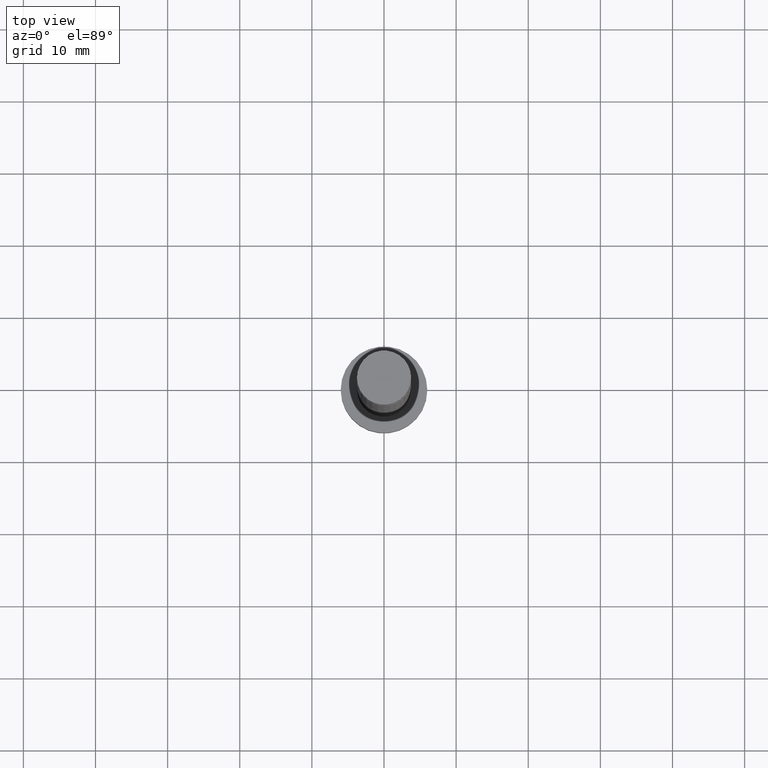
[diagram: clean part render]
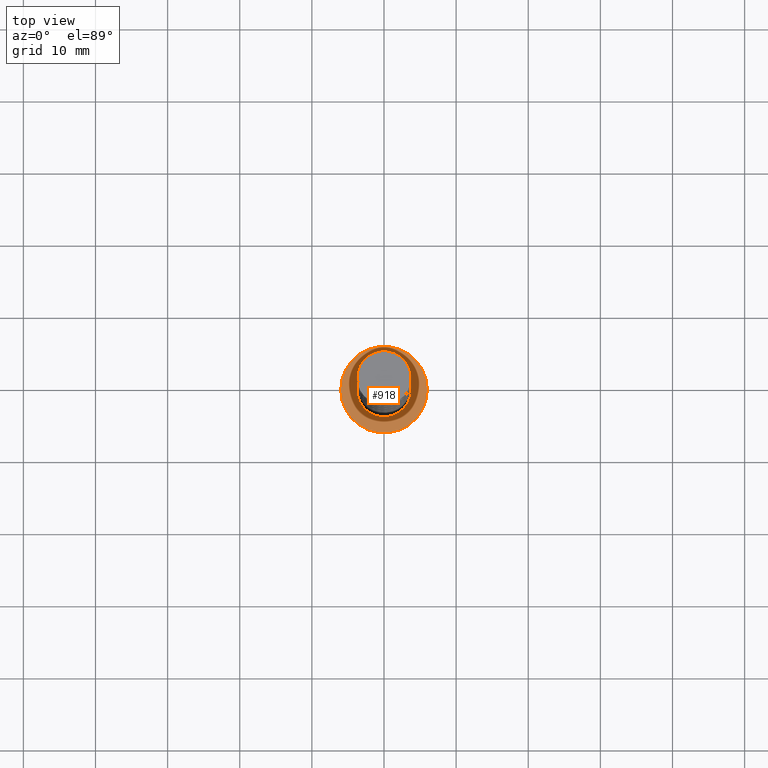
[diagram: same view with one face highlighted and labeled with its STEP entity id]
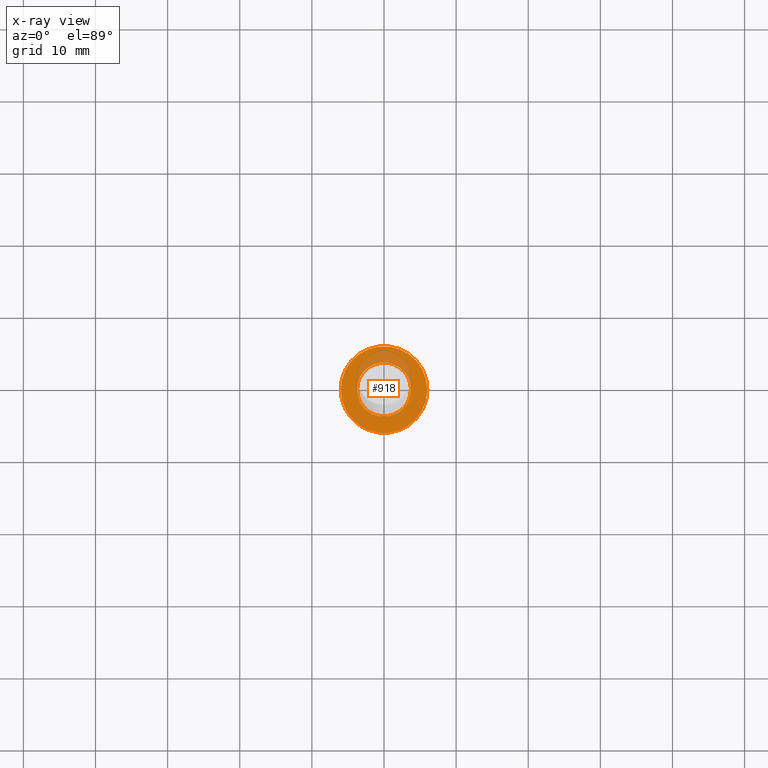
[diagram: x-ray of the same camera — body ghosted, the highlighted face saturated]
A machine part, top view. The second image highlights one B-rep face of the part: STEP entity #918.
The next image is the same camera in x-ray: the body ghosted, the highlighted face saturated — about 18% of this face is hidden behind the body in this view.
In plain terms, the highlighted planar face has unit normal (0, 0, 1).
Its self-contained STEP definition (entity closure, byte-faithful):
#8 = CARTESIAN_POINT ( 'NONE',  ( 6.000000000000000888, 7.347880794884120722E-16, 5.000000000000000000 ) ) ;
#24 = EDGE_LOOP ( 'NONE', ( #1397, #1110 ) ) ;
#36 = DIRECTION ( 'NONE',  ( 0.000000000000000000, 0.000000000000000000, 1.000000000000000000 ) ) ;
#50 = CARTESIAN_POINT ( 'NONE',  ( 0.000000000000000000, 0.000000000000000000, 5.000000000000000000 ) ) ;
#60 = CIRCLE ( 'NONE', #1012, 3.750000000000000000 ) ;
#62 = CARTESIAN_POINT ( 'NONE',  ( 3.750000000000000000, 4.592425496802573972E-16, 5.000000000000000000 ) ) ;
#85 = EDGE_CURVE ( 'NONE', #1339, #738, #1280, .T. ) ;
#119 = EDGE_CURVE ( 'NONE', #738, #1339, #1080, .T. ) ;
#192 = DIRECTION ( 'NONE',  ( 0.000000000000000000, 0.000000000000000000, 1.000000000000000000 ) ) ;
#201 = AXIS2_PLACEMENT_3D ( 'NONE', #50, #724, #1306 ) ;
#226 = ORIENTED_EDGE ( 'NONE', *, *, #119, .T. ) ;
#259 = CARTESIAN_POINT ( 'NONE',  ( 0.000000000000000000, 0.000000000000000000, 5.000000000000000000 ) ) ;
#274 = CIRCLE ( 'NONE', #1332, 3.750000000000000000 ) ;
#286 = EDGE_CURVE ( 'NONE', #320, #1429, #60, .T. ) ;
#320 = VERTEX_POINT ( 'NONE', #62 ) ;
#412 = DIRECTION ( 'NONE',  ( 1.000000000000000000, 0.000000000000000000, 0.000000000000000000 ) ) ;
#454 = DIRECTION ( 'NONE',  ( 0.000000000000000000, 0.000000000000000000, 1.000000000000000000 ) ) ;
#530 = PLANE ( 'NONE',  #793 ) ;
#554 = CARTESIAN_POINT ( 'NONE',  ( 0.000000000000000000, 0.000000000000000000, 5.000000000000000000 ) ) ;
#607 = AXIS2_PLACEMENT_3D ( 'NONE', #1378, #454, #671 ) ;
#671 = DIRECTION ( 'NONE',  ( 1.000000000000000000, 0.000000000000000000, 0.000000000000000000 ) ) ;
#724 = DIRECTION ( 'NONE',  ( 0.000000000000000000, 0.000000000000000000, 1.000000000000000000 ) ) ;
#738 = VERTEX_POINT ( 'NONE', #1274 ) ;
#778 = EDGE_CURVE ( 'NONE', #1429, #320, #274, .T. ) ;
#793 = AXIS2_PLACEMENT_3D ( 'NONE', #1436, #192, #972 ) ;
#918 = ADVANCED_FACE ( 'NONE', ( #1212, #1191 ), #530, .T. ) ;
#951 = EDGE_LOOP ( 'NONE', ( #226, #971 ) ) ;
#971 = ORIENTED_EDGE ( 'NONE', *, *, #85, .T. ) ;
#972 = DIRECTION ( 'NONE',  ( 1.000000000000000000, 0.000000000000000000, -0.000000000000000000 ) ) ;
#1010 = CARTESIAN_POINT ( 'NONE',  ( -3.750000000000000000, 0.000000000000000000, 5.000000000000000000 ) ) ;
#1012 = AXIS2_PLACEMENT_3D ( 'NONE', #554, #1079, #412 ) ;
#1079 = DIRECTION ( 'NONE',  ( 0.000000000000000000, 0.000000000000000000, 1.000000000000000000 ) ) ;
#1080 = CIRCLE ( 'NONE', #201, 6.000000000000000888 ) ;
#1110 = ORIENTED_EDGE ( 'NONE', *, *, #286, .F. ) ;
#1191 = FACE_OUTER_BOUND ( 'NONE', #951, .T. ) ;
#1212 = FACE_BOUND ( 'NONE', #24, .T. ) ;
#1274 = CARTESIAN_POINT ( 'NONE',  ( -6.000000000000000888, 0.000000000000000000, 5.000000000000000000 ) ) ;
#1280 = CIRCLE ( 'NONE', #607, 6.000000000000000888 ) ;
#1306 = DIRECTION ( 'NONE',  ( 1.000000000000000000, 0.000000000000000000, 0.000000000000000000 ) ) ;
#1332 = AXIS2_PLACEMENT_3D ( 'NONE', #259, #36, #1416 ) ;
#1339 = VERTEX_POINT ( 'NONE', #8 ) ;
#1378 = CARTESIAN_POINT ( 'NONE',  ( 0.000000000000000000, 0.000000000000000000, 5.000000000000000000 ) ) ;
#1397 = ORIENTED_EDGE ( 'NONE', *, *, #778, .F. ) ;
#1416 = DIRECTION ( 'NONE',  ( 1.000000000000000000, 0.000000000000000000, 0.000000000000000000 ) ) ;
#1429 = VERTEX_POINT ( 'NONE', #1010 ) ;
#1436 = CARTESIAN_POINT ( 'NONE',  ( 0.000000000000000000, 0.000000000000000000, 5.000000000000000000 ) ) ;